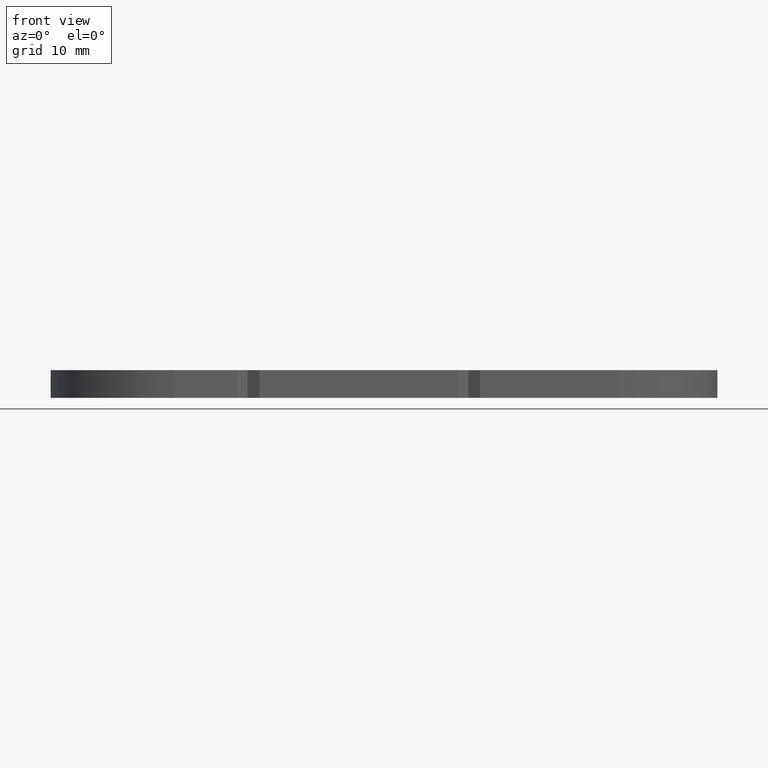
[diagram: clean part render]
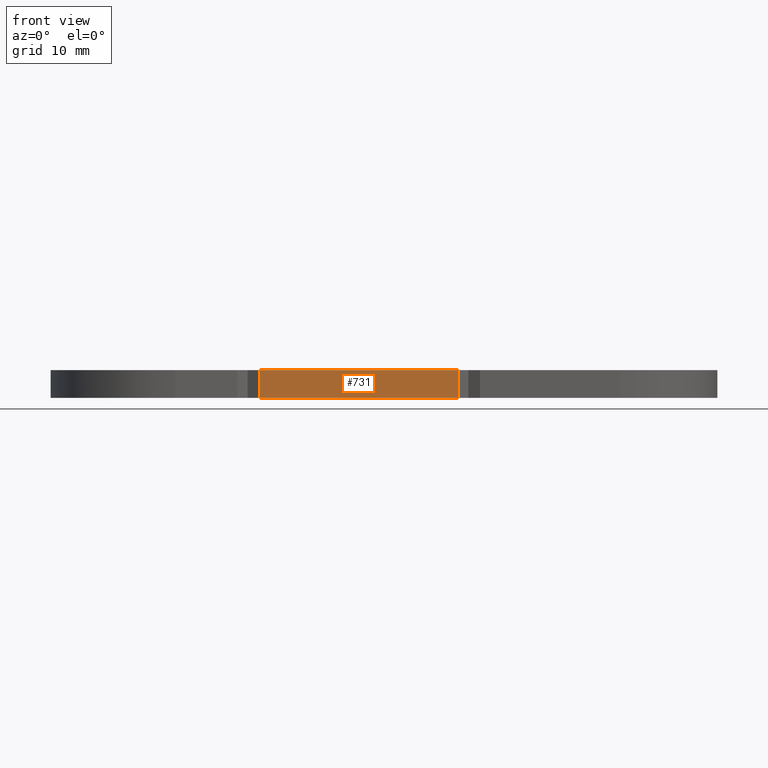
[diagram: same view with one face highlighted and labeled with its STEP entity id]
A machine part, front view. The second image highlights one B-rep face of the part: STEP entity #731.
In plain terms, the highlighted planar face has unit normal (0.1207, -0.9927, 0).
Its self-contained STEP definition (entity closure, byte-faithful):
#675=CARTESIAN_POINT('',(8.792702349735734,-9.004260815384725,-2.500000000000000));
#676=VERTEX_POINT('',#675);
#683=CARTESIAN_POINT('',(8.792702349735734,-9.004260815384725,0.0));
#684=VERTEX_POINT('',#683);
#685=CARTESIAN_POINT('',(8.792702349735734,-9.004260815384725,-2.500000000000000));
#686=DIRECTION('',(0.0,0.0,1.0));
#687=VECTOR('',#686,2.500000000000000);
#688=LINE('',#685,#687);
#689=EDGE_CURVE('',#676,#684,#688,.T.);
#701=CARTESIAN_POINT('',(8.792702349735734,-9.004260815384725,-2.500000000000000));
#702=DIRECTION('',(0.120741426966118,-0.992683991919979,0.0));
#703=DIRECTION('',(0.992683991919979,0.120741426966118,0.0));
#704=AXIS2_PLACEMENT_3D('',#701,#702,#703);
#705=PLANE('',#704);
#706=CARTESIAN_POINT('',(26.661014204275091,-6.830915129997067,-2.500000000000000));
#707=VERTEX_POINT('',#706);
#708=CARTESIAN_POINT('',(8.792702349735734,-9.004260815384725,-2.500000000000000));
#709=DIRECTION('',(0.992683991919979,0.120741426966118,0.0));
#710=VECTOR('',#709,17.999999999979579);
#711=LINE('',#708,#710);
#712=EDGE_CURVE('',#676,#707,#711,.T.);
#713=ORIENTED_EDGE('',*,*,#712,.T.);
#714=CARTESIAN_POINT('',(26.661014204275091,-6.830915129997067,0.0));
#715=VERTEX_POINT('',#714);
#716=CARTESIAN_POINT('',(26.661014204275091,-6.830915129997067,-2.500000000000000));
#717=DIRECTION('',(0.0,0.0,1.0));
#718=VECTOR('',#717,2.500000000000000);
#719=LINE('',#716,#718);
#720=EDGE_CURVE('',#707,#715,#719,.T.);
#721=ORIENTED_EDGE('',*,*,#720,.T.);
#722=CARTESIAN_POINT('',(8.792702349735734,-9.004260815384725,0.0));
#723=DIRECTION('',(0.992683991919979,0.120741426966118,0.0));
#724=VECTOR('',#723,17.999999999979579);
#725=LINE('',#722,#724);
#726=EDGE_CURVE('',#684,#715,#725,.T.);
#727=ORIENTED_EDGE('',*,*,#726,.F.);
#728=ORIENTED_EDGE('',*,*,#689,.F.);
#729=EDGE_LOOP('',(#713,#721,#727,#728));
#730=FACE_OUTER_BOUND('',#729,.T.);
#731=ADVANCED_FACE('',(#730),#705,.T.);